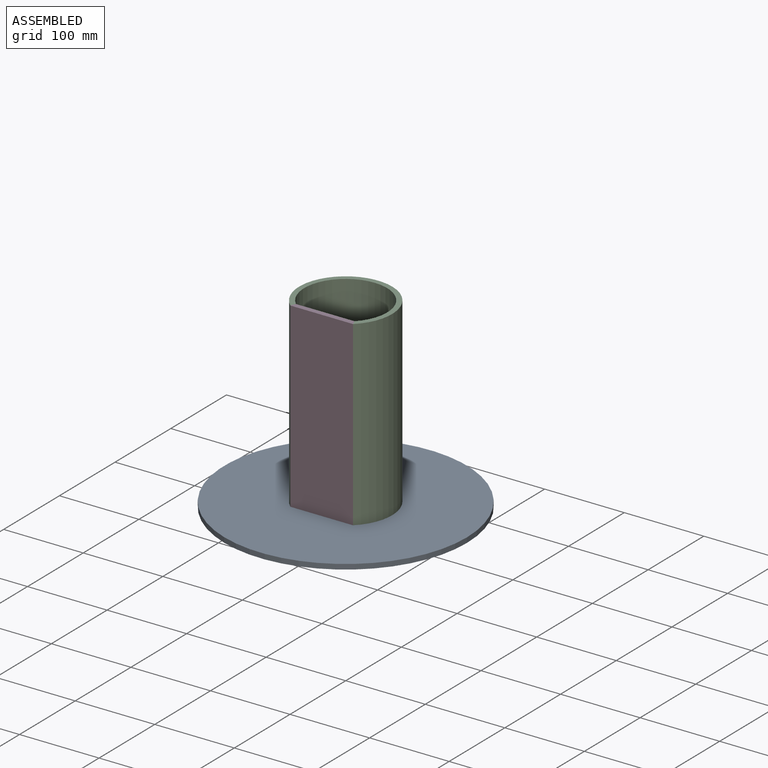
[diagram: assembled view]
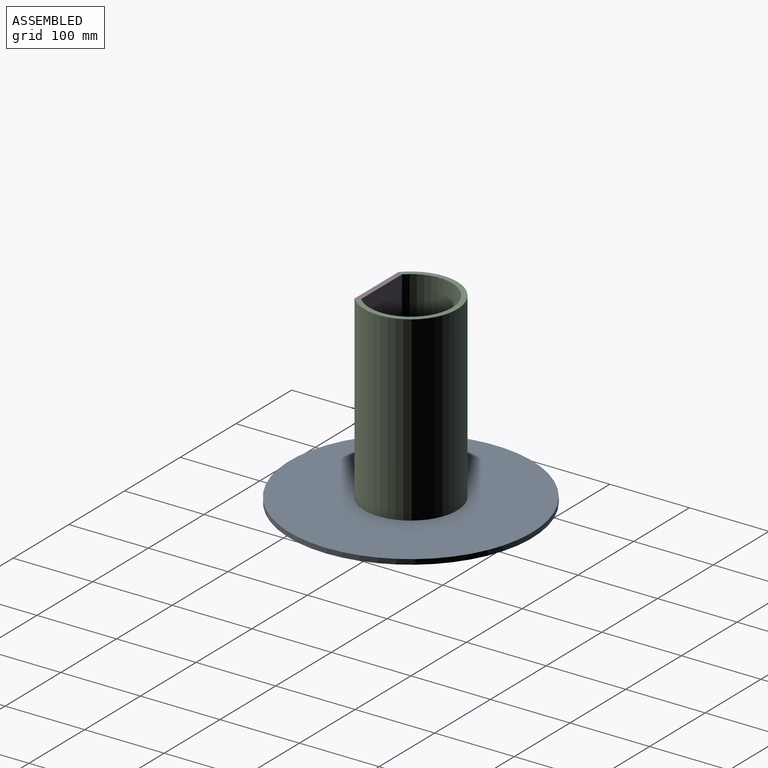
[diagram: assembled view, second angle]
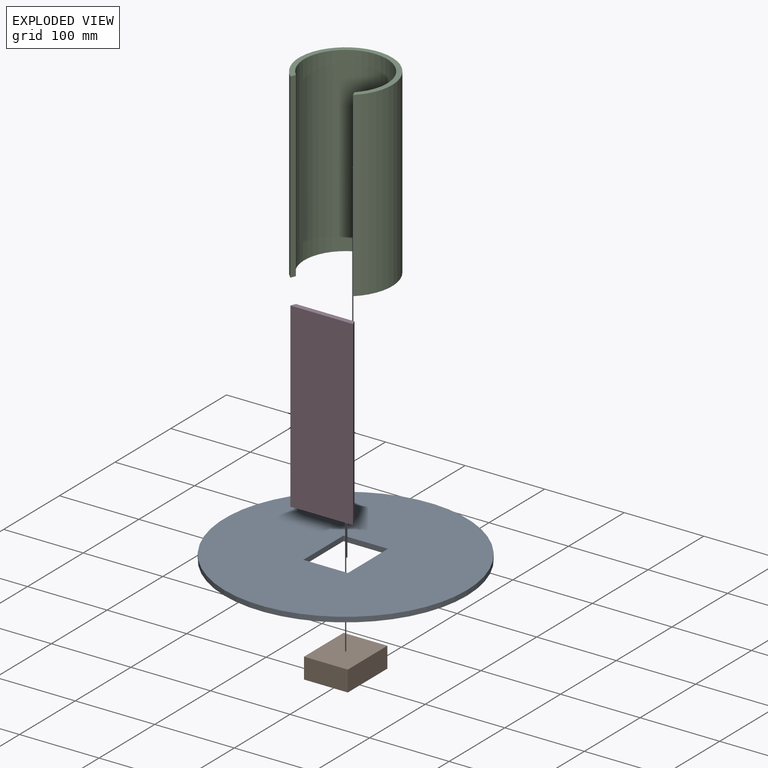
[diagram: exploded view]
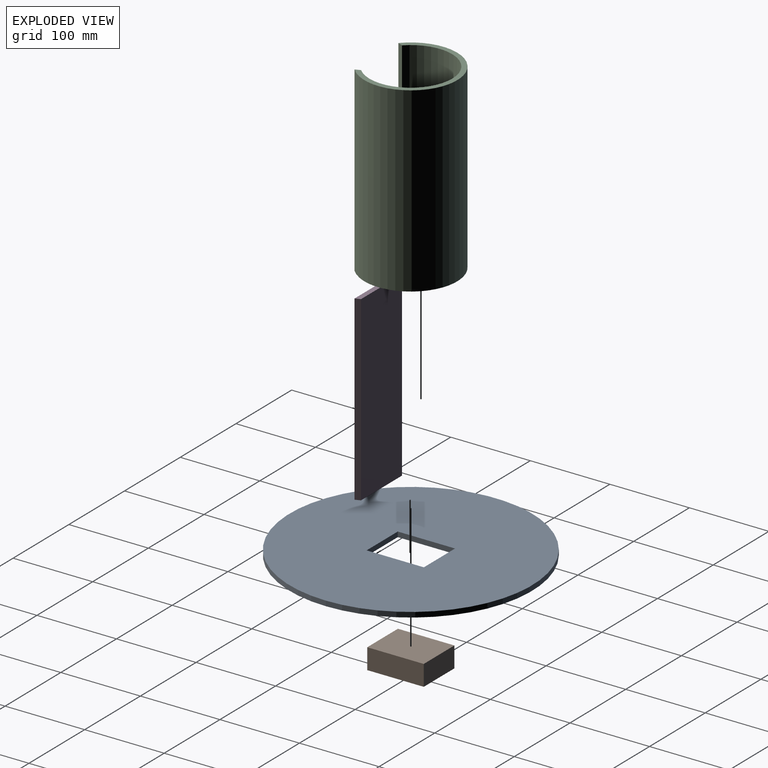
[diagram: exploded view, second angle]
ASSEMBLY  parts=4 mates=3
PART A: 7 faces, bbox 304.8x304.8x6.4 mm
  f0: plane 56x6.35mm, normal (0,1,0), area 355.6mm2, adj f1,f4,f5,f6
  f1: plane 72x6.35mm, normal (1,0,0), area 457.2mm2, adj f0,f2,f5,f6
  f2: plane 56x6.35mm, normal (0,-1,0), area 355.6mm2, adj f1,f4,f5,f6
  f3: cylinder r=152.4mm len=304.8mm, axis (0,0,-1), area 6080.5mm2, adj f5,f6
  f4: plane 72x6.35mm, normal (-1,0,0), area 457.2mm2, adj f0,f2,f5,f6
  f5: plane 304.8x304.8mm, normal (0,0,1), area 68933.9mm2, adj f0,f1,f2,f3,f4
  f6: plane 304.8x304.8mm, normal (0,0,-1), area 68933.9mm2, adj f0,f1,f2,f3,f4
PART B: 6 faces, bbox 55x71x26 mm
  f0: plane 71x26mm, normal (-1,0,0), area 1846mm2, adj f1,f3,f4,f5
  f1: plane 55x26mm, normal (0,-1,0), area 1430mm2, adj f0,f2,f4,f5
  f2: plane 71x26mm, normal (1,0,0), area 1846mm2, adj f1,f3,f4,f5
  f3: plane 55x26mm, normal (0,1,0), area 1430mm2, adj f0,f2,f4,f5
  f4: plane 71x55mm, normal (0,0,1), area 3905mm2, adj f0,f1,f2,f3
  f5: plane 71x55mm, normal (0,0,-1), area 3905mm2, adj f0,f1,f2,f3
PART C: 6 faces, bbox 116.8x101.6x228.6 mm
  f0: cylinder r=52.07mm len=228.6mm, axis (0,0,-1), area 56092.5mm2, adj f1,f3,f4,f5
  f1: plane 228.6x6.35mm, normal (-0.93,-0.37,0), area 1563.6mm2, adj f0,f2,f4,f5
  f2: cylinder r=58.42mm len=228.6mm, axis (0,0,-1), area 64164.4mm2, adj f1,f3,f4,f5
  f3: plane 228.6x6.35mm, normal (0.93,-0.37,0), area 1563.6mm2, adj f0,f2,f4,f5
  f4: plane 116.84x101.59mm, normal (0,0,1), area 1670.3mm2, adj f0,f1,f2,f3
  f5: plane 116.84x101.59mm, normal (0,0,-1), area 1670.3mm2, adj f0,f1,f2,f3
PART D: 6 faces, bbox 78.7x6.4x228.6 mm
  f0: plane 228.6x6.35mm, normal (0.93,0.37,0), area 1563.6mm2, adj f1,f3,f4,f5
  f1: plane 228.6x73.64mm, normal (0,1,0), area 16833.7mm2, adj f0,f2,f4,f5
  f2: plane 228.6x6.35mm, normal (-0.93,0.37,0), area 1563.6mm2, adj f1,f3,f4,f5
  f3: plane 228.6x78.72mm, normal (0,-1,0), area 17996.1mm2, adj f0,f2,f4,f5
  f4: plane 78.72x6.35mm, normal (0,0,1), area 483.7mm2, adj f0,f1,f2,f3
  f5: plane 78.72x6.35mm, normal (0,0,-1), area 483.7mm2, adj f0,f1,f2,f3
PLACE A at identity
PLACE B t=(-27.5,-35.5,-19.65)mm
PLACE C t=(0,0,6.35)mm
PLACE D t=(0,0,6.35)mm
MATE fastened C.f0 <-> A.f3  axis (0,0,-1) through (0,0,6.35)mm
MATE fastened B.f4 <-> A.f3  axis (0,0,1) through (0,0,6.35)mm
MATE fastened C.f3 <-> D.f2  axis (0.93,-0.37,0) through (-38.09,-39.99,120.65)mm
